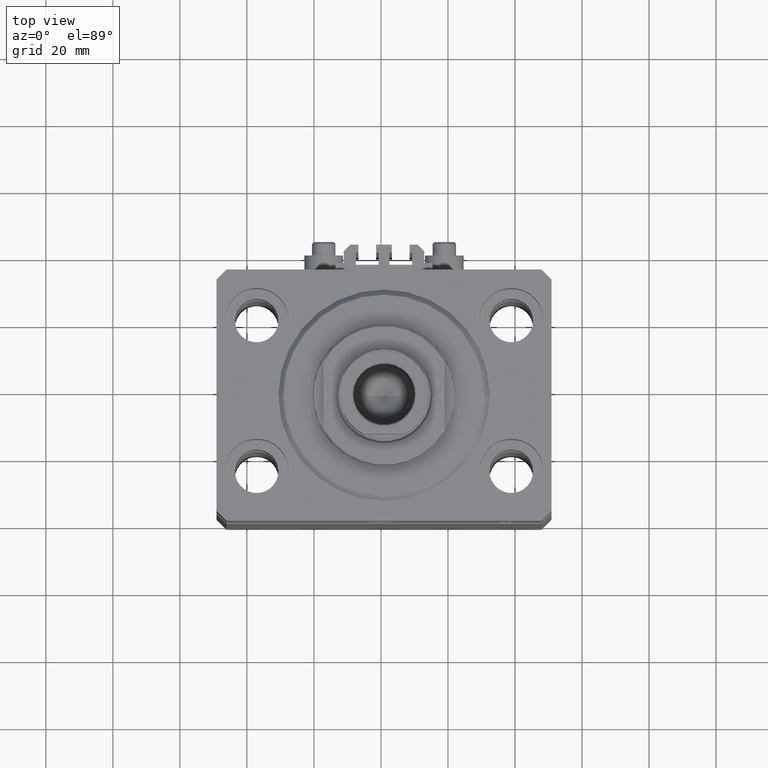
[diagram: clean part render]
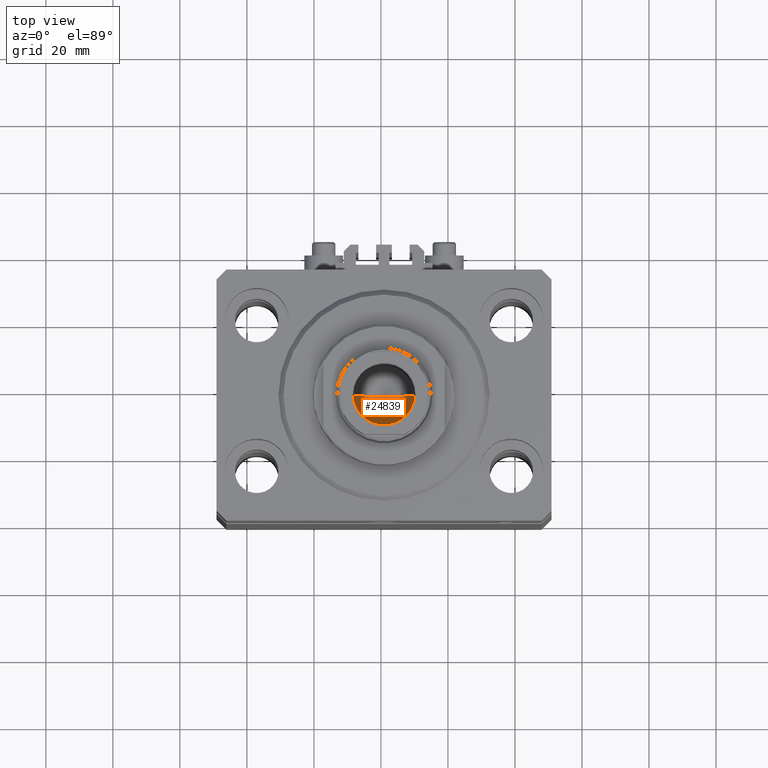
[diagram: same view with one face highlighted and labeled with its STEP entity id]
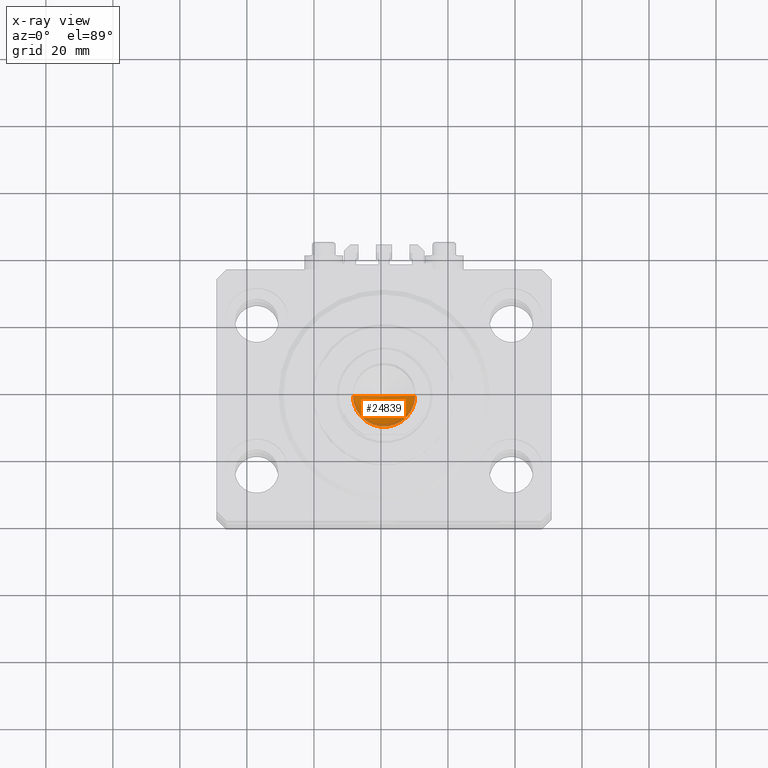
[diagram: x-ray of the same camera — body ghosted, the highlighted face saturated]
A machine part, top view. The second image highlights one B-rep face of the part: STEP entity #24839.
The next image is the same camera in x-ray: the body ghosted, the highlighted face saturated — about 8% of this face is hidden behind the body in this view.
In plain terms, the highlighted conical surface has half-angle 59 deg.
Its self-contained STEP definition (entity closure, byte-faithful):
#423 = EDGE_CURVE ( 'NONE', #39263, #29255, #5620, .T. ) ;
#1967 = CARTESIAN_POINT ( 'NONE',  ( 9.249999999999994671, 0.000000000000000000, 128.0000000000000000 ) ) ;
#4832 = LINE ( 'NONE', #38951, #23511 ) ;
#5620 = LINE ( 'NONE', #1967, #33957 ) ;
#7998 = AXIS2_PLACEMENT_3D ( 'NONE', #13057, #9626, #20598 ) ;
#9626 = DIRECTION ( 'NONE',  ( -0.000000000000000000, -0.000000000000000000, 1.000000000000000000 ) ) ;
#13057 = CARTESIAN_POINT ( 'NONE',  ( 0.000000000000000000, 0.000000000000000000, 128.0000000000000000 ) ) ;
#14209 = VERTEX_POINT ( 'NONE', #39112 ) ;
#16512 = EDGE_LOOP ( 'NONE', ( #31593, #44202, #34742 ) ) ;
#17975 = CARTESIAN_POINT ( 'NONE',  ( -1.046994375366439223E-14, 0.000000000000000000, 122.4420392739950643 ) ) ;
#19996 = DIRECTION ( 'NONE',  ( 0.8571673007021117785, 0.000000000000000000, 0.5150380749100550437 ) ) ;
#20192 = DIRECTION ( 'NONE',  ( -0.8571673007021117785, 1.049727191138617956E-16, 0.5150380749100550437 ) ) ;
#20598 = DIRECTION ( 'NONE',  ( 1.000000000000000000, 0.000000000000000000, 0.000000000000000000 ) ) ;
#22762 = CIRCLE ( 'NONE', #7998, 9.249999999999994671 ) ;
#23511 = VECTOR ( 'NONE', #20192, 1000.000000000000000 ) ;
#24566 = EDGE_CURVE ( 'NONE', #39263, #14209, #4832, .T. ) ;
#24839 = ADVANCED_FACE ( 'NONE', ( #27924 ), #32071, .F. ) ;
#27924 = FACE_OUTER_BOUND ( 'NONE', #16512, .T. ) ;
#28908 = EDGE_CURVE ( 'NONE', #14209, #29255, #22762, .T. ) ;
#29255 = VERTEX_POINT ( 'NONE', #34840 ) ;
#31593 = ORIENTED_EDGE ( 'NONE', *, *, #423, .F. ) ;
#32071 = CONICAL_SURFACE ( 'NONE', #42181, 9.249999999999994671, 1.029744258676653423 ) ;
#33957 = VECTOR ( 'NONE', #19996, 1000.000000000000000 ) ;
#34742 = ORIENTED_EDGE ( 'NONE', *, *, #28908, .T. ) ;
#34840 = CARTESIAN_POINT ( 'NONE',  ( 9.249999999999994671, 0.000000000000000000, 128.0000000000000000 ) ) ;
#35221 = DIRECTION ( 'NONE',  ( -0.000000000000000000, -0.000000000000000000, 1.000000000000000000 ) ) ;
#38155 = CARTESIAN_POINT ( 'NONE',  ( 0.000000000000000000, 0.000000000000000000, 128.0000000000000000 ) ) ;
#38647 = DIRECTION ( 'NONE',  ( 1.000000000000000000, 0.000000000000000000, 0.000000000000000000 ) ) ;
#38951 = CARTESIAN_POINT ( 'NONE',  ( -9.249999999999994671, 1.132798289211300909E-15, 128.0000000000000000 ) ) ;
#39112 = CARTESIAN_POINT ( 'NONE',  ( -9.249999999999994671, 1.132798289211300909E-15, 128.0000000000000000 ) ) ;
#39263 = VERTEX_POINT ( 'NONE', #17975 ) ;
#42181 = AXIS2_PLACEMENT_3D ( 'NONE', #38155, #35221, #38647 ) ;
#44202 = ORIENTED_EDGE ( 'NONE', *, *, #24566, .T. ) ;